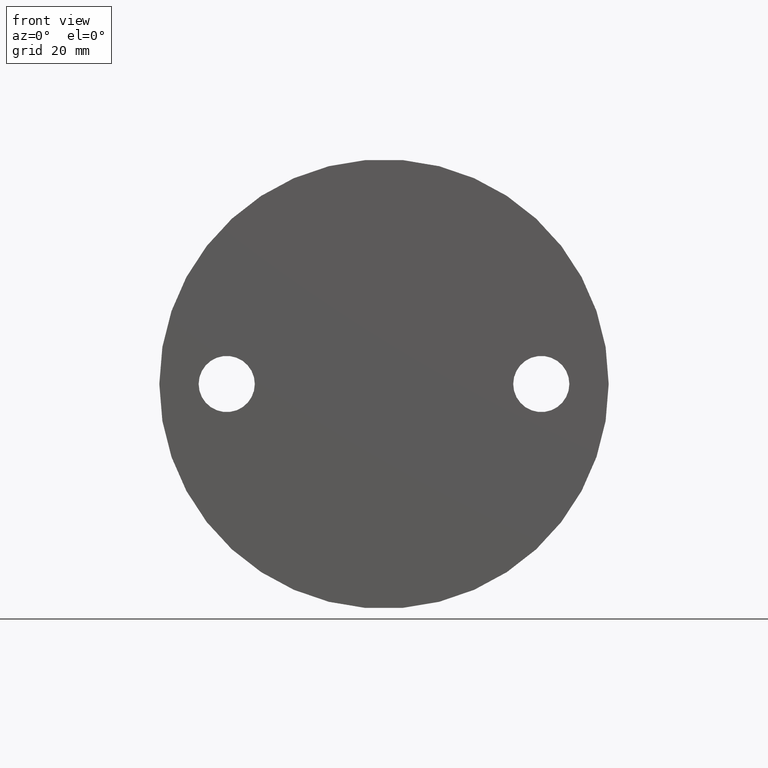
[diagram: clean part render]
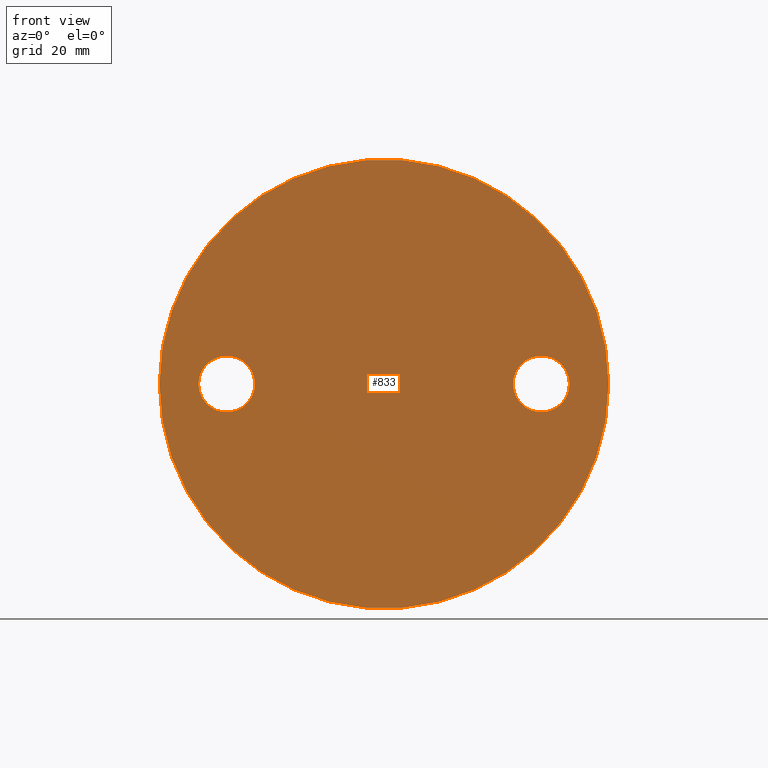
[diagram: same view with one face highlighted and labeled with its STEP entity id]
A machine part, front view. The second image highlights one B-rep face of the part: STEP entity #833.
In plain terms, the highlighted planar face has unit normal (0, -1, 0).
Its self-contained STEP definition (entity closure, byte-faithful):
#30=FACE_BOUND('',#203,.T.);
#31=FACE_BOUND('',#204,.T.);
#69=PLANE('',#986);
#152=FACE_OUTER_BOUND('',#202,.T.);
#202=EDGE_LOOP('',(#713));
#203=EDGE_LOOP('',(#714));
#204=EDGE_LOOP('',(#715));
#272=CIRCLE('',#916,50.);
#303=CIRCLE('',#959,6.25);
#305=CIRCLE('',#962,6.25);
#322=VERTEX_POINT('',#1247);
#368=VERTEX_POINT('',#1539);
#370=VERTEX_POINT('',#1545);
#409=EDGE_CURVE('',#322,#322,#272,.T.);
#464=EDGE_CURVE('',#368,#368,#303,.T.);
#467=EDGE_CURVE('',#370,#370,#305,.T.);
#713=ORIENTED_EDGE('',*,*,#409,.T.);
#714=ORIENTED_EDGE('',*,*,#464,.T.);
#715=ORIENTED_EDGE('',*,*,#467,.T.);
#833=ADVANCED_FACE('',(#152,#30,#31),#69,.T.);
#916=AXIS2_PLACEMENT_3D('',#1248,#1021,#1022);
#959=AXIS2_PLACEMENT_3D('',#1541,#1111,#1112);
#962=AXIS2_PLACEMENT_3D('',#1547,#1118,#1119);
#986=AXIS2_PLACEMENT_3D('',#1660,#1175,#1176);
#1021=DIRECTION('center_axis',(0.,-1.,0.));
#1022=DIRECTION('ref_axis',(-1.,0.,0.));
#1111=DIRECTION('center_axis',(0.,1.,0.));
#1112=DIRECTION('ref_axis',(1.,0.,0.));
#1118=DIRECTION('center_axis',(0.,1.,0.));
#1119=DIRECTION('ref_axis',(1.,0.,0.));
#1175=DIRECTION('center_axis',(0.,-1.,0.));
#1176=DIRECTION('ref_axis',(0.,0.,-1.));
#1247=CARTESIAN_POINT('',(50.,0.,6.12303176911189E-15));
#1248=CARTESIAN_POINT('Origin',(0.,0.,0.));
#1539=CARTESIAN_POINT('',(-41.25,0.,7.65378971138397E-16));
#1541=CARTESIAN_POINT('Origin',(-35.,0.,0.));
#1545=CARTESIAN_POINT('',(28.75,0.,7.65378971138397E-16));
#1547=CARTESIAN_POINT('Origin',(35.,0.,0.));
#1660=CARTESIAN_POINT('Origin',(-25.,0.,-6.12303176911189E-15));